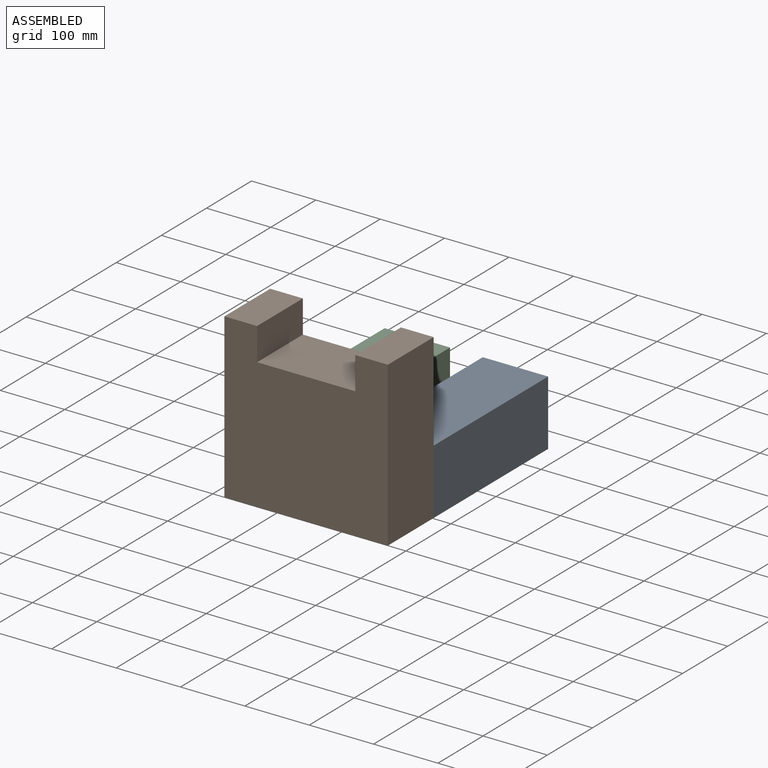
[diagram: assembled view]
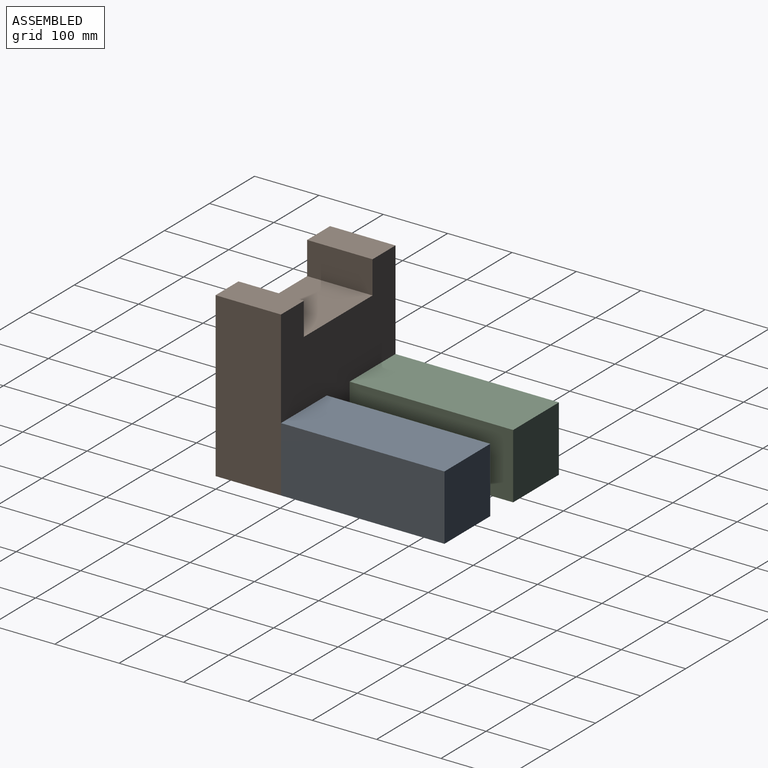
[diagram: assembled view, second angle]
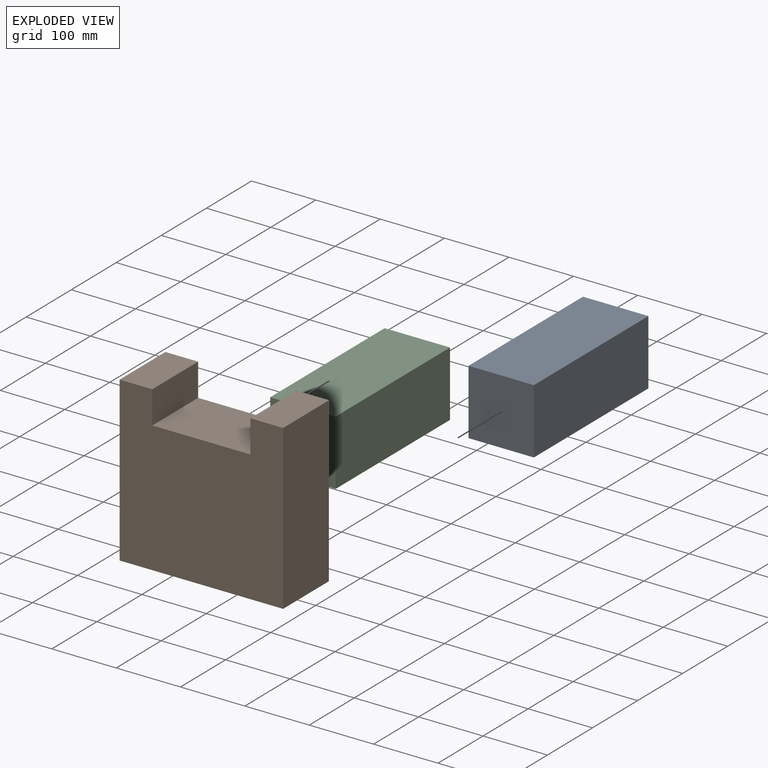
[diagram: exploded view]
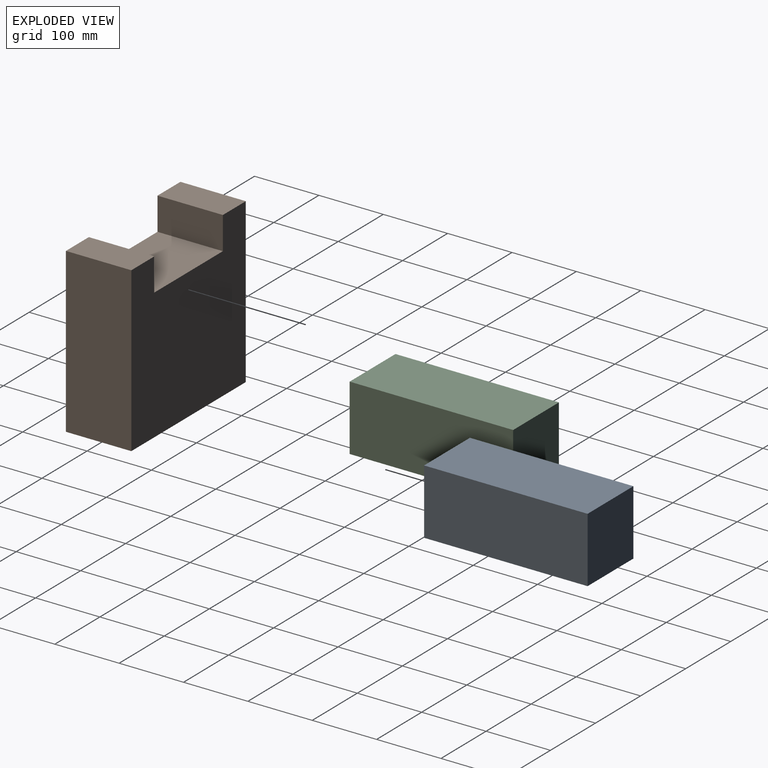
[diagram: exploded view, second angle]
ASSEMBLY  parts=3 mates=2
PART A: 6 faces, bbox 101.6x254x101.6 mm
  f0: plane 254x101.6mm, normal (-1,0,0), area 25806.4mm2, adj f1,f3,f4,f5
  f1: plane 254x101.6mm, normal (0,0,-1), area 25806.4mm2, adj f0,f2,f4,f5
  f2: plane 254x101.6mm, normal (1,0,0), area 25806.4mm2, adj f1,f3,f4,f5
  f3: plane 254x101.6mm, normal (0,0,1), area 25806.4mm2, adj f0,f2,f4,f5
  f4: plane 101.6x101.6mm, normal (0,-1,0), area 10322.6mm2, adj f0,f1,f2,f3
  f5: plane 101.6x101.6mm, normal (0,1,0), area 10322.6mm2, adj f0,f1,f2,f3
PART B: 10 faces, bbox 254x101.6x254 mm
  f0: plane 254x101.6mm, normal (-1,0,0), area 25806.4mm2, adj f1,f7,f8,f9
  f1: plane 254x101.6mm, normal (0,0,-1), area 25806.4mm2, adj f0,f2,f8,f9
  f2: plane 254x101.6mm, normal (1,0,0), area 25806.4mm2, adj f1,f3,f8,f9
  f3: plane 101.6x50.8mm, normal (0,0,1), area 5161.3mm2, adj f2,f4,f8,f9
  f4: plane 101.6x50.8mm, normal (-1,0,0), area 5161.3mm2, adj f3,f5,f8,f9
  f5: plane 152.4x101.6mm, normal (0,0,1), area 15483.8mm2, adj f4,f6,f8,f9
  f6: plane 101.6x50.8mm, normal (1,0,0), area 5161.3mm2, adj f5,f7,f8,f9
  f7: plane 101.6x50.8mm, normal (0,0,1), area 5161.3mm2, adj f0,f6,f8,f9
  f8: plane 254x254mm, normal (0,-1,0), area 56774.1mm2, adj f0,f1,f2,f3,f4,f5,f6,f7
  f9: plane 254x254mm, normal (0,1,0), area 56774.1mm2, adj f0,f1,f2,f3,f4,f5,f6,f7
PART C: same geometry as A
PLACE A rot(axis=(0,-1,0),90deg) t=(81.43,342.33,-31.24)mm
PLACE B t=(-172.57,88.33,-31.24)mm
PLACE C t=(-172.57,342.33,-31.24)mm
MATE fastened C.f4 <-> B.f9  axis (0,1,0) through (-172.57,88.33,-31.24)mm
MATE fastened A.f4 <-> B.f9  axis (0,1,0) through (81.43,88.33,-31.24)mm
